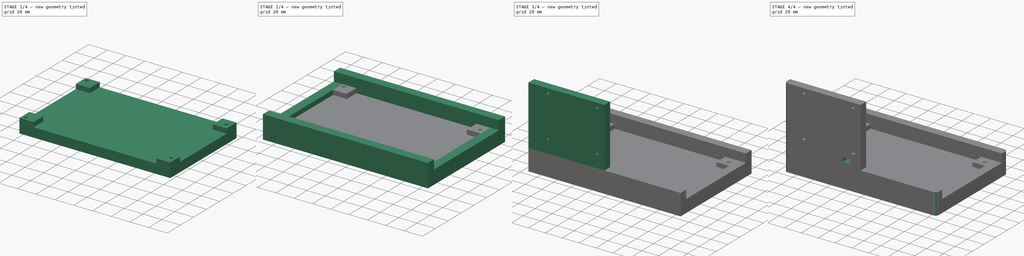
[diagram: build sequence overview — one tinted view per stage of 4, left to right]
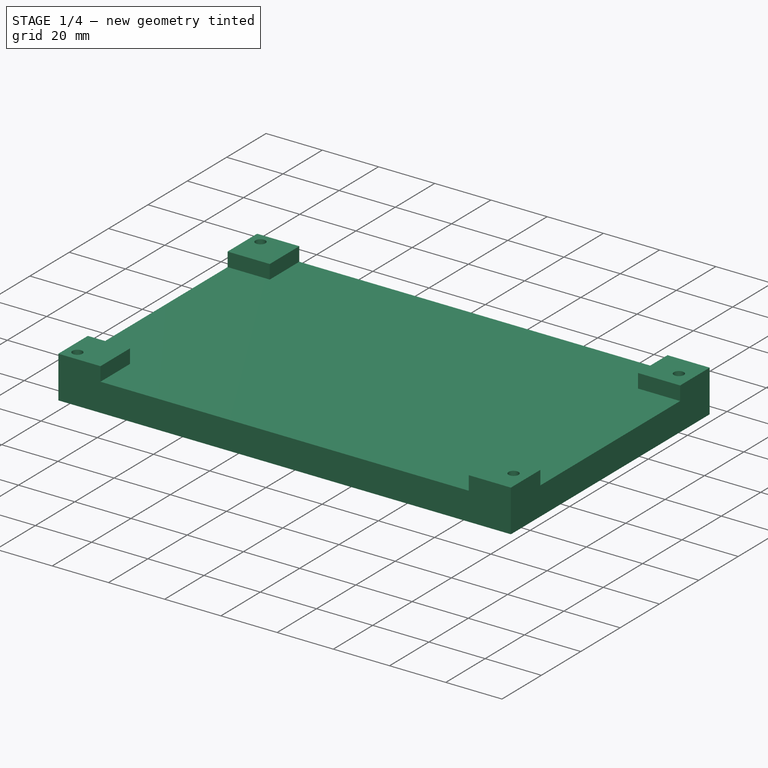
[diagram: stage 1 of 4 — iso view after this stage's code; geometry added in this stage tinted green]
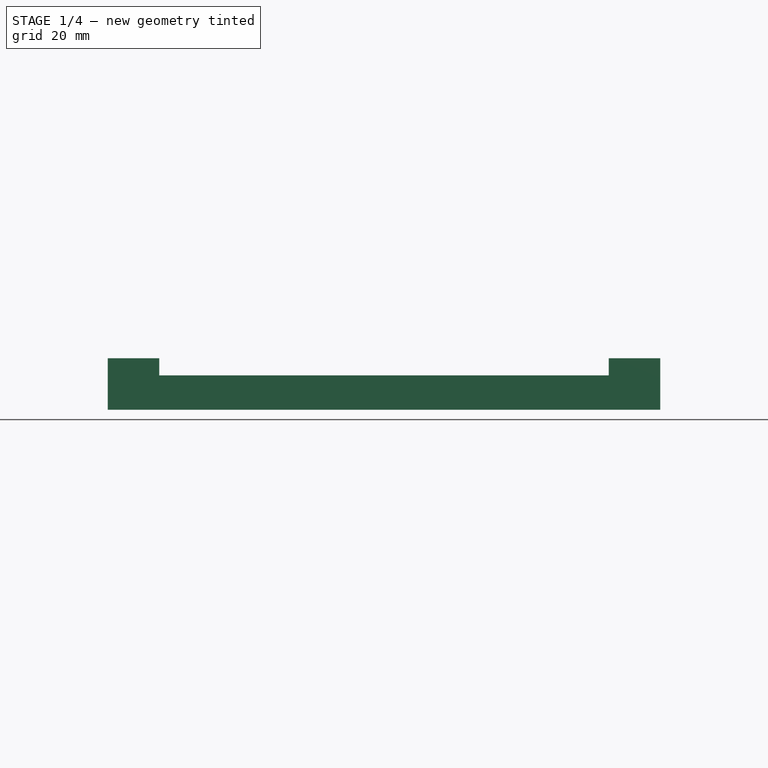
[diagram: stage 1 of 4 — front view after this stage's code; geometry added in this stage tinted green]
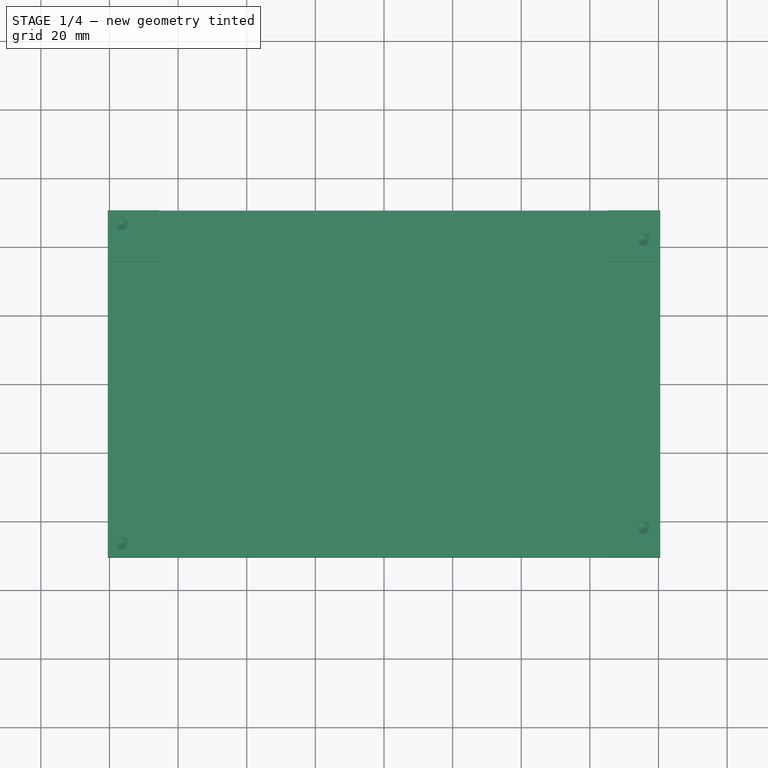
[diagram: stage 1 of 4 — top view after this stage's code; geometry added in this stage tinted green]
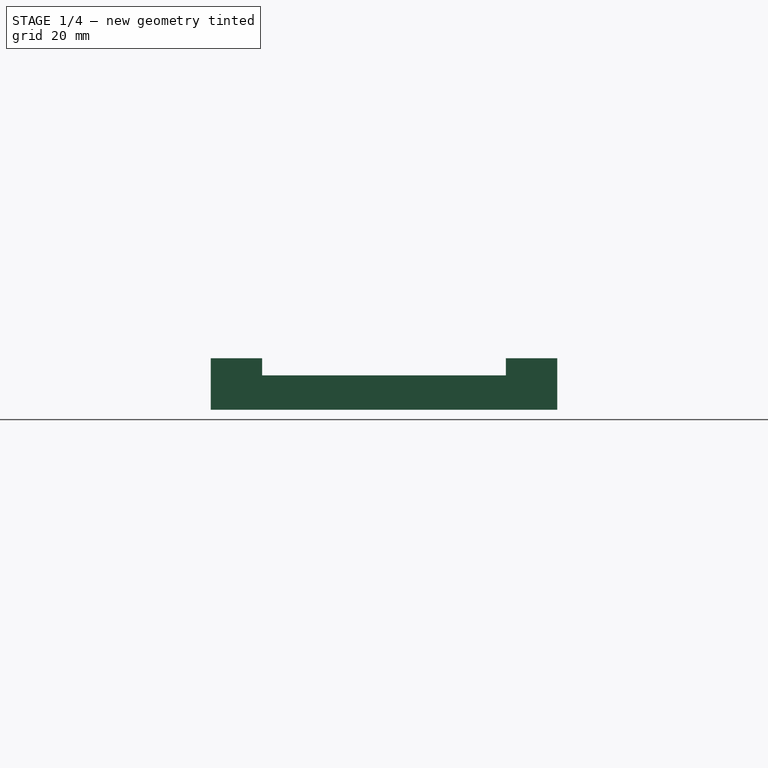
[diagram: stage 1 of 4 — right view after this stage's code; geometry added in this stage tinted green]
FCSTD DOCUMENT  (FreeCAD 0.21R33771 (Git))
Label: ez7-pi
License: All rights reserved
LicenseURL: https://en.wikipedia.org/wiki/All_rights_reserved
objects: Sketcher::SketchObject×11, PartDesign::Pad×4, PartDesign::Pocket×3, PartDesign::Body×2, PartDesign::Hole×2, PartDesign::Fillet×2
note: 35 computed .brp shape members not serialized (recipe doc carries the construction recipe); baked Part::Feature solids carry a one-line shape summary decoded from their .brp

FEATURE [PartDesign::Body] Body
  Origin = -> Origin
FEATURE [Sketcher::SketchObject] Sketch
  FullyConstrained = true
  MapMode = 5
  Support = -> [XY_Plane001]
  sketch-geometry (4):
    g0: LineSegment StartX=-80.5 StartY=50.5 StartZ=0 EndX=80.5 EndY=50.5 EndZ=0
    g1: LineSegment StartX=80.5 StartY=50.5 StartZ=0 EndX=80.5 EndY=-50.5 EndZ=0
    g2: LineSegment StartX=80.5 StartY=-50.5 StartZ=0 EndX=-80.5 EndY=-50.5 EndZ=0
    g3: LineSegment StartX=-80.5 StartY=-50.5 StartZ=0 EndX=-80.5 EndY=50.5 EndZ=0
  constraints (12):
    c: Coincident(g0,g1)
    c: Coincident(g1,g2)
    c: Coincident(g2,g3)
    c: Coincident(g3,g0)
    c: Horizontal(g0)
    c: Horizontal(g2)
    c: Vertical(g1)
    c: Vertical(g3)
    c: DistanceX(g0,g0) = 161
    c: DistanceY(g3,g3) = 101
    c: Distance(g-1,g3) = 80.5
    c: Distance(g-1,g0) = 50.5
FEATURE [PartDesign::Pad] Pad
  Direction = (0,0,1)
  Length = 10
  Length2 = 10
  Profile = -> Sketch
  ReferenceAxis = -> Sketch [N_Axis]
  Type = 0
FEATURE [Sketcher::SketchObject] Sketch001
  ExternalGeometry = -> [Pad]
  FullyConstrained = true
  MapMode = 5
  Placement = pos=(0,0,10) rot=(0,0,1;0rad)
  Support = -> [Pad]
  sketch-geometry (16):
    g0: LineSegment StartX=-80.5 StartY=50.5 StartZ=0 EndX=-65.5 EndY=50.5 EndZ=0
    g1: LineSegment StartX=-65.5 StartY=50.5 StartZ=0 EndX=-65.5 EndY=35.5 EndZ=0
    g2: LineSegment StartX=-65.5 StartY=35.5 StartZ=0 EndX=-80.5 EndY=35.5 EndZ=0
    g3: LineSegment StartX=-80.5 StartY=35.5 StartZ=0 EndX=-80.5 EndY=50.5 EndZ=0
    g4: LineSegment StartX=-80.5 StartY=-50.5 StartZ=0 EndX=-65.5 EndY=-50.5 EndZ=0
    g5: LineSegment StartX=-65.5 StartY=-50.5 StartZ=0 EndX=-65.5 EndY=-35.5 EndZ=0
    g6: LineSegment StartX=-65.5 StartY=-35.5 StartZ=0 EndX=-80.5 EndY=-35.5 EndZ=0
    g7: LineSegment StartX=-80.5 StartY=-35.5 StartZ=0 EndX=-80.5 EndY=-50.5 EndZ=0
    g8: LineSegment StartX=80.5 StartY=-50.5 StartZ=0 EndX=65.5 EndY=-50.5 EndZ=0
    g9: LineSegment StartX=65.5 StartY=-50.5 StartZ=0 EndX=65.5 EndY=-35.5 EndZ=0
    g10: LineSegment StartX=65.5 StartY=-35.5 StartZ=0 EndX=80.5 EndY=-35.5 EndZ=0
    g11: LineSegment StartX=80.5 StartY=-35.5 StartZ=0 EndX=80.5 EndY=-50.5 EndZ=0
    g12: LineSegment StartX=80.5 StartY=50.5 StartZ=0 EndX=65.5 EndY=50.5 EndZ=0
    g13: LineSegment StartX=65.5 StartY=50.5 StartZ=0 EndX=65.5 EndY=35.5 EndZ=0
    g14: LineSegment StartX=65.5 StartY=35.5 StartZ=0 EndX=80.5 EndY=35.5 EndZ=0
    g15: LineSegment StartX=80.5 StartY=35.5 StartZ=0 EndX=80.5 EndY=50.5 EndZ=0
  constraints (44):
    c: Coincident(g0,g1)
    c: Coincident(g1,g2)
    c: Coincident(g2,g3)
    c: Coincident(g3,g0)
    c: Horizontal(g0)
    c: Horizontal(g2)
    c: Vertical(g1)
    c: Vertical(g3)
    c: Coincident(g0,g-5)
    c: Coincident(g4,g5)
    c: Coincident(g5,g6)
    c: Coincident(g6,g7)
    c: Coincident(g7,g4)
    c: Horizontal(g4)
    c: Horizontal(g6)
    c: Vertical(g5)
    c: Vertical(g7)
    c: Coincident(g4,g-6)
    c: Coincident(g8,g9)
    c: Coincident(g9,g10)
    c: Coincident(g10,g11)
    c: Coincident(g11,g8)
    c: Horizontal(g8)
    c: Horizontal(g10)
    c: Vertical(g9)
    c: Vertical(g11)
    c: Coincident(g8,g-6)
    c: Coincident(g12,g13)
    c: Coincident(g13,g14)
    c: Coincident(g14,g15)
    c: Coincident(g15,g12)
    c: Horizontal(g12)
    c: Horizontal(g14)
    c: Vertical(g13)
    c: Vertical(g15)
    c: Coincident(g12,g-4)
    c: DistanceY(g3,g3) = 15
    c: DistanceX(g2,g2) = 15
    c: DistanceY(g5,g5) = 15
    c: DistanceX(g6,g6) = 15
    c: DistanceX(g10,g10) = 15
    c: DistanceY(g9,g9) = 15
    c: DistanceY(g13,g13) = 15
    c: DistanceX(g14,g14) = 15
FEATURE [PartDesign::Pad] Pad001
  BaseFeature = -> Pad
  Direction = (0,0,1)
  Length = 5
  Length2 = 10
  Profile = -> Sketch001
  ReferenceAxis = -> Sketch001 [N_Axis]
  Type = 0
FEATURE [Sketcher::SketchObject] Sketch002
  FullyConstrained = true
  MapMode = 5
  Placement = pos=(0,0,15) rot=(0,0,1;0rad)
  Support = -> [Pad001]
FEATURE [Sketcher::SketchObject] Sketch003
  ExternalGeometry = -> [Pad001]
  FullyConstrained = true
  MapMode = 5
  Placement = pos=(0,0,15) rot=(0,0,1;0rad)
  Support = -> [Pad001]
  sketch-geometry (4):
    g0: Circle CenterX=-76.5 CenterY=-46.5 CenterZ=0 NormalX=0 NormalY=0 NormalZ=1 AngleXU=0 Radius=1.775
    g1: Circle CenterX=-76.5 CenterY=46.5 CenterZ=0 NormalX=0 NormalY=0 NormalZ=1 AngleXU=0 Radius=1.775
    g2: Circle CenterX=75.5 CenterY=-42 CenterZ=0 NormalX=0 NormalY=0 NormalZ=1 AngleXU=0 Radius=1.5
    g3: Circle CenterX=75.5 CenterY=42 CenterZ=0 NormalX=0 NormalY=0 NormalZ=1 AngleXU=0 Radius=1.5
  constraints (12):
    c: Distance(g0,g-5) = 4
    c: Distance(g0,g-4) = 4
    c: Diameter(g0) = 3.55
    c: Diameter(g1) = 3.55
    c: Distance(g1,g-8) = 4
    c: Distance(g1,g-10) = 4
    c: Distance(g2,g-16) = 8.5
    c: Distance(g3,g-12) = 8.5
    c: Diameter(g3) = 3
    c: Diameter(g2) = 3
    c: Distance(g2,g-18) = 5
    c: Distance(g3,g-14) = 5
FEATURE [PartDesign::Hole] Hole
  BaseFeature = -> Pad001
  CustomThreadClearance = 0
  Depth = 5
  DepthType = 0
  Diameter = 3.55
  DrillForDepth = false
  DrillPoint = 1
  DrillPointAngle = 118
  HoleCutCountersinkAngle = 90
  HoleCutCustomValues = false
  HoleCutDepth = 0
  HoleCutDiameter = 6.1
  HoleCutType = 0
  ModelThread = false
  Profile = -> Sketch003
  Tapered = false
  TaperedAngle = 90
  ThreadClass = 0
  ThreadDepth = 5
  ThreadDepthType = 0
  ThreadDirection = 0
  ThreadFit = 0
  ThreadSize = 0
  ThreadType = 0
  Threaded = false
  UseCustomThreadClearance = false
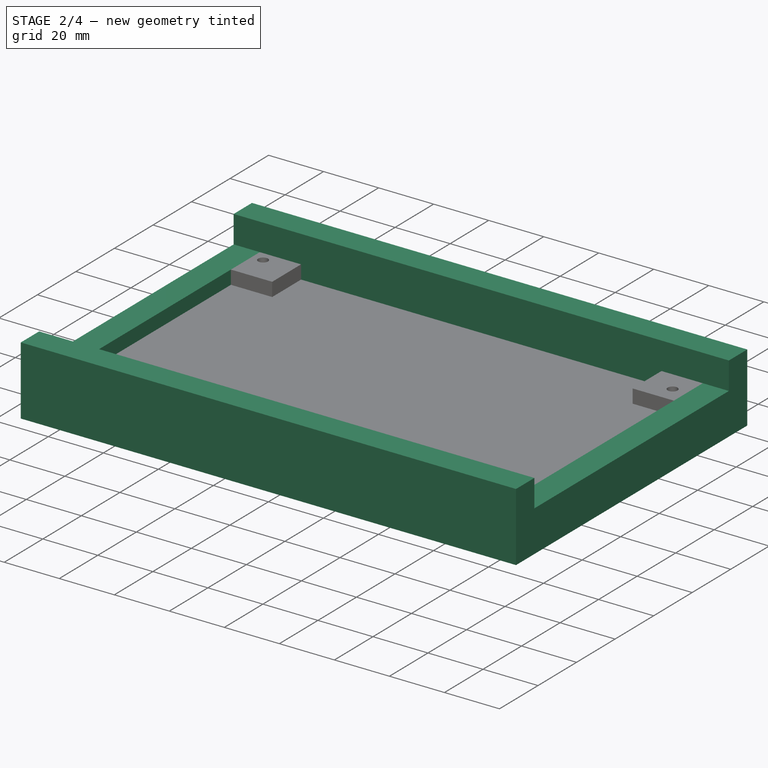
[diagram: stage 2 of 4 — iso view after this stage's code; geometry added in this stage tinted green]
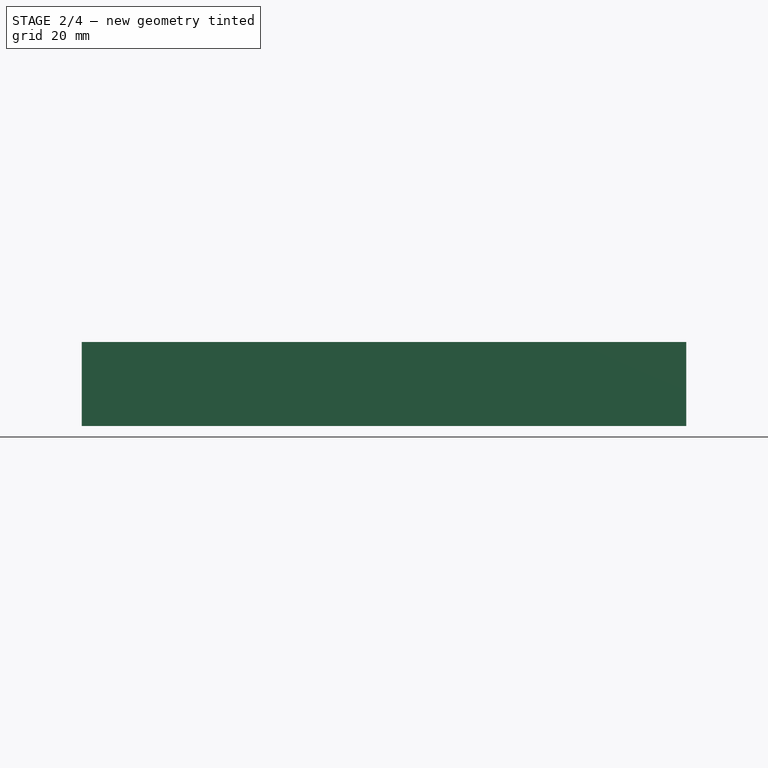
[diagram: stage 2 of 4 — front view after this stage's code; geometry added in this stage tinted green]
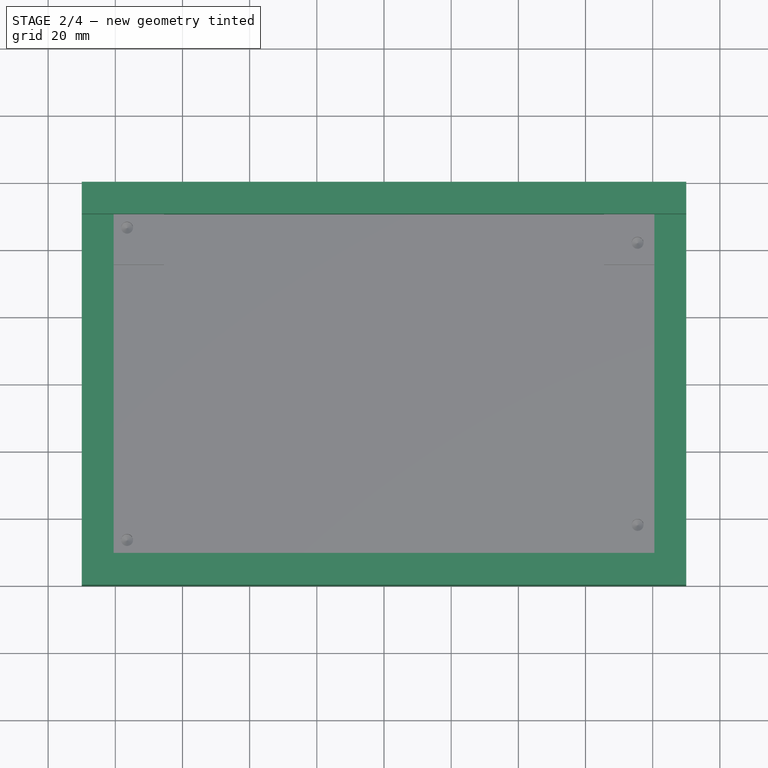
[diagram: stage 2 of 4 — top view after this stage's code; geometry added in this stage tinted green]
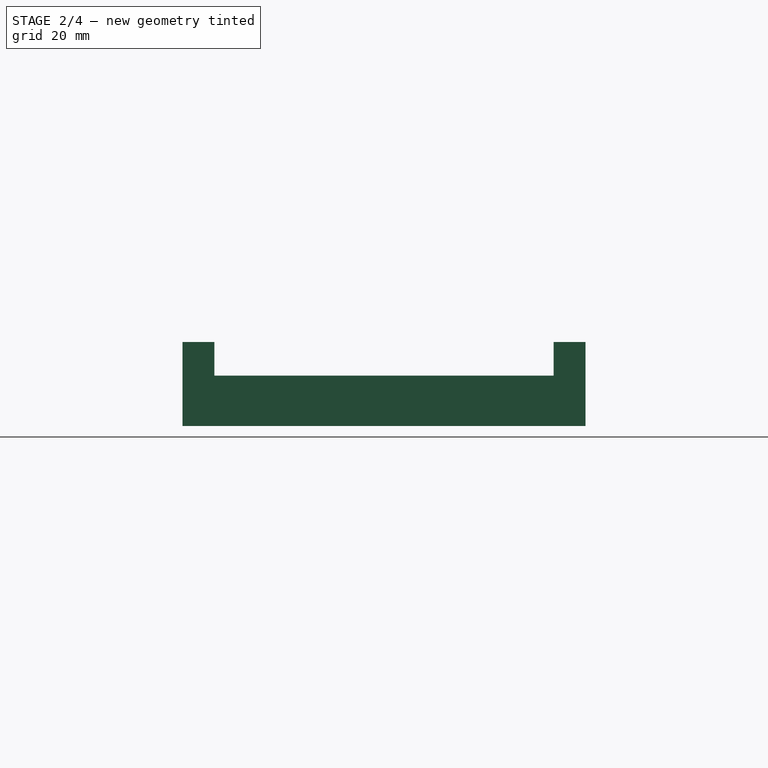
[diagram: stage 2 of 4 — right view after this stage's code; geometry added in this stage tinted green]
FEATURE [Sketcher::SketchObject] Sketch004
  FullyConstrained = true
  MapMode = 5
  Placement = pos=(0,0,10) rot=(0,0,1;0rad)
  Support = -> [Hole]
FEATURE [Sketcher::SketchObject] Sketch005
  ExternalGeometry = -> [Hole]
  FullyConstrained = true
  MapMode = 5
  Support = -> [XY_Plane001]
  sketch-geometry (8):
    g0: LineSegment StartX=90 StartY=60 StartZ=0 EndX=-90 EndY=60 EndZ=0
    g1: LineSegment StartX=-90 StartY=60 StartZ=0 EndX=-90 EndY=-60 EndZ=0
    g2: LineSegment StartX=-90 StartY=-60 StartZ=0 EndX=90 EndY=-60 EndZ=0
    g3: LineSegment StartX=90 StartY=-60 StartZ=0 EndX=90 EndY=60 EndZ=0
    g4: LineSegment StartX=-80.5 StartY=-50.5 StartZ=0 EndX=80.5 EndY=-50.5 EndZ=0
    g5: LineSegment StartX=80.5 StartY=-50.5 StartZ=0 EndX=80.5 EndY=50.5 EndZ=0
    g6: LineSegment StartX=80.5 StartY=50.5 StartZ=0 EndX=-80.5 EndY=50.5 EndZ=0
    g7: LineSegment StartX=-80.5 StartY=50.5 StartZ=0 EndX=-80.5 EndY=-50.5 EndZ=0
  constraints (22):
    c: Coincident(g0,g1)
    c: Coincident(g1,g2)
    c: Coincident(g2,g3)
    c: Coincident(g3,g0)
    c: Horizontal(g0)
    c: Horizontal(g2)
    c: Vertical(g1)
    c: Vertical(g3)
    c: Distance(g0) = 180
    c: Distance(g3) = 120
    c: Distance(g-1,g0) = 60
    c: Distance(g-1,g1) = 90
    c: Coincident(g4,g5)
    c: Coincident(g5,g6)
    c: Coincident(g6,g7)
    c: Coincident(g7,g4)
    c: Horizontal(g4)
    c: Horizontal(g6)
    c: Vertical(g5)
    c: Vertical(g7)
    c: Coincident(g4,g-4)
    c: Coincident(g5,g-6)
FEATURE [PartDesign::Pad] Pad002
  BaseFeature = -> Hole
  Direction = (0,0,1)
  Length = 25
  Length2 = 10
  Profile = -> Sketch005
  ReferenceAxis = -> Sketch005 [N_Axis]
  Type = 0
FEATURE [Sketcher::SketchObject] Sketch006
  ExternalGeometry = -> [Pad002]
  FullyConstrained = true
  MapMode = 5
  Placement = pos=(0,0,25) rot=(0,0,1;0rad)
  Support = -> [Pad002]
  sketch-geometry (4):
    g0: LineSegment StartX=80.5 StartY=50.5 StartZ=0 EndX=90 EndY=50.5 EndZ=0
    g1: LineSegment StartX=90 StartY=50.5 StartZ=0 EndX=90 EndY=-50.5 EndZ=0
    g2: LineSegment StartX=90 StartY=-50.5 StartZ=0 EndX=80.5 EndY=-50.5 EndZ=0
    g3: LineSegment StartX=80.5 StartY=-50.5 StartZ=0 EndX=80.5 EndY=50.5 EndZ=0
  constraints (11):
    c: Coincident(g0,g1)
    c: Coincident(g1,g2)
    c: Coincident(g2,g3)
    c: Coincident(g3,g0)
    c: Horizontal(g0)
    c: Horizontal(g2)
    c: Vertical(g1)
    c: Vertical(g3)
    c: Coincident(g0,g-3)
    c: PointOnObject(g1,g-4)
    c: Distance(g3) = 101
FEATURE [PartDesign::Pocket] Pocket
  BaseFeature = -> Pad002
  Direction = (0,0,-1)
  Length = 10
  Length2 = 5
  Profile = -> Sketch006
  ReferenceAxis = -> Sketch006 [N_Axis]
  Type = 0
FEATURE [Sketcher::SketchObject] Sketch007
  ExternalGeometry = -> [Pocket]
  FullyConstrained = true
  MapMode = 5
  Placement = pos=(0,0,25) rot=(0,0,1;0rad)
  Support = -> [Pocket]
  sketch-geometry (4):
    g0: LineSegment StartX=-80.5 StartY=50.5 StartZ=0 EndX=-90 EndY=50.5 EndZ=0
    g1: LineSegment StartX=-90 StartY=50.5 StartZ=0 EndX=-90 EndY=-50.5 EndZ=0
    g2: LineSegment StartX=-90 StartY=-50.5 StartZ=0 EndX=-80.5 EndY=-50.5 EndZ=0
    g3: LineSegment StartX=-80.5 StartY=-50.5 StartZ=0 EndX=-80.5 EndY=50.5 EndZ=0
  constraints (11):
    c: Coincident(g0,g1)
    c: Coincident(g1,g2)
    c: Coincident(g2,g3)
    c: Coincident(g3,g0)
    c: Horizontal(g0)
    c: Horizontal(g2)
    c: Vertical(g1)
    c: Vertical(g3)
    c: Coincident(g0,g-8)
    c: PointOnObject(g1,g-4)
    c: DistanceY(g3,g3) = 101
FEATURE [PartDesign::Pocket] Pocket001
  BaseFeature = -> Pocket
  Direction = (0,0,-1)
  Length = 10
  Length2 = 5
  Profile = -> Sketch007
  ReferenceAxis = -> Sketch007 [N_Axis]
  Type = 0
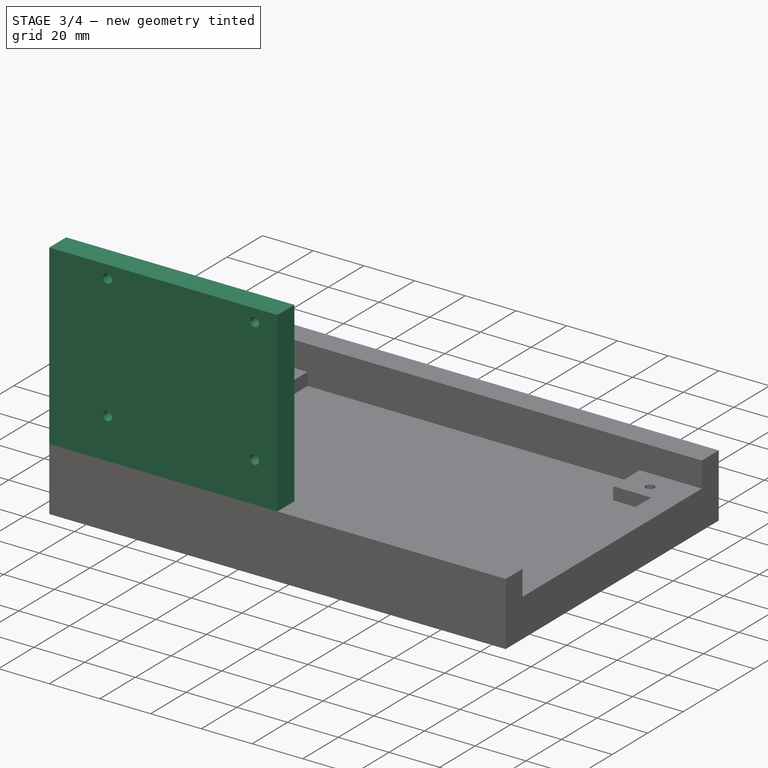
[diagram: stage 3 of 4 — iso view after this stage's code; geometry added in this stage tinted green]
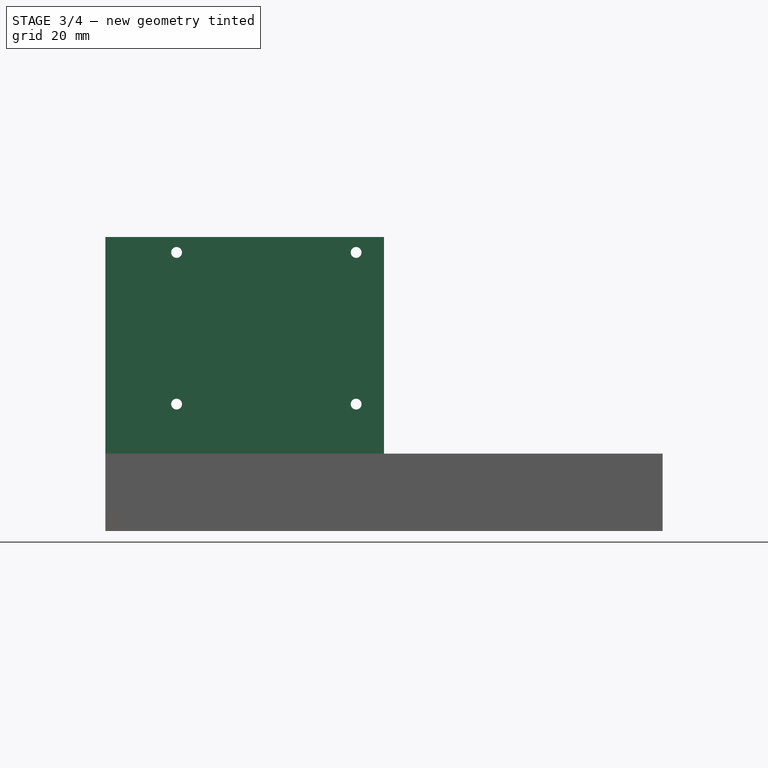
[diagram: stage 3 of 4 — front view after this stage's code; geometry added in this stage tinted green]
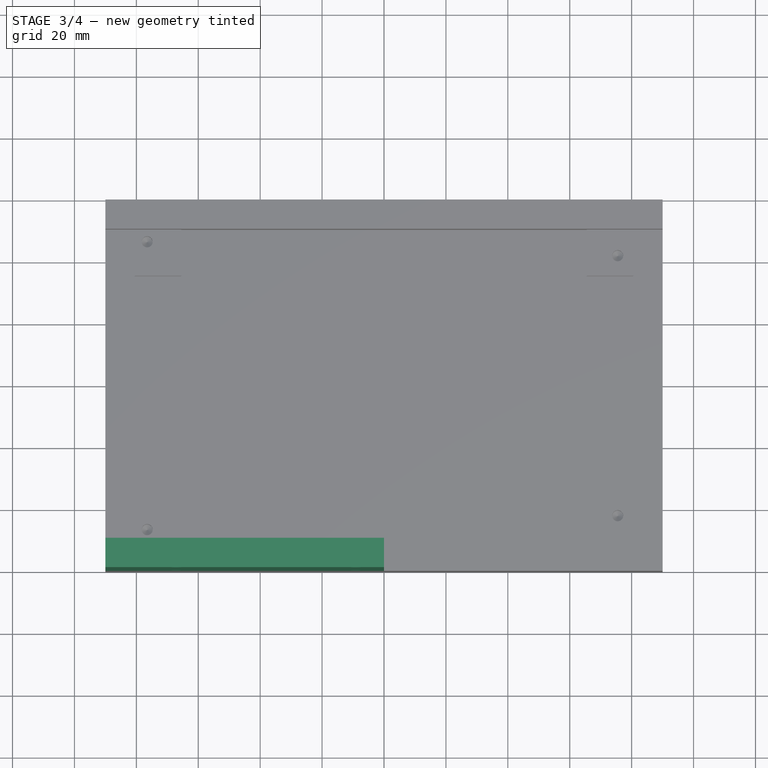
[diagram: stage 3 of 4 — top view after this stage's code; geometry added in this stage tinted green]
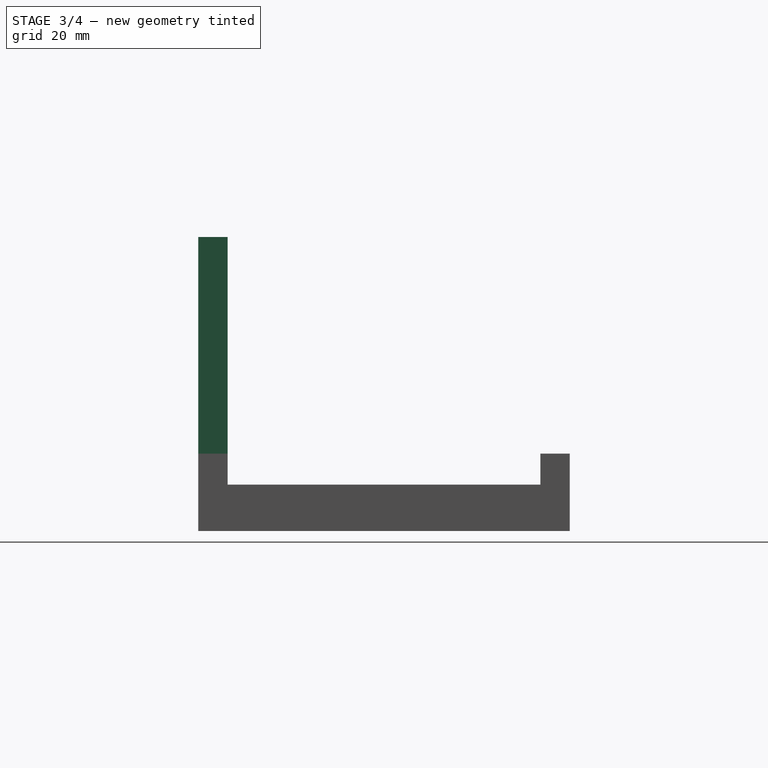
[diagram: stage 3 of 4 — right view after this stage's code; geometry added in this stage tinted green]
FEATURE [Sketcher::SketchObject] Sketch008
  ExternalGeometry = -> [Pocket001]
  FullyConstrained = true
  MapMode = 5
  Placement = pos=(0,0,25) rot=(0,0,1;0rad)
  Support = -> [Pocket001]
  sketch-geometry (4):
    g0: LineSegment StartX=-90 StartY=-50.5 StartZ=0 EndX=0 EndY=-50.5 EndZ=0
    g1: LineSegment StartX=0 StartY=-50.5 StartZ=0 EndX=0 EndY=-60 EndZ=0
    g2: LineSegment StartX=0 StartY=-60 StartZ=0 EndX=-90 EndY=-60 EndZ=0
    g3: LineSegment StartX=-90 StartY=-60 StartZ=0 EndX=-90 EndY=-50.5 EndZ=0
  constraints (11):
    c: Coincident(g0,g1)
    c: Coincident(g1,g2)
    c: Coincident(g2,g3)
    c: Coincident(g3,g0)
    c: Horizontal(g0)
    c: Horizontal(g2)
    c: Vertical(g1)
    c: Vertical(g3)
    c: Coincident(g0,g-4)
    c: PointOnObject(g1,g-5)
    c: DistanceX(g2,g2) = 90
FEATURE [PartDesign::Pad] Pad003
  BaseFeature = -> Pocket001
  Direction = (0,0,1)
  Length = 70
  Length2 = 10
  Profile = -> Sketch008
  ReferenceAxis = -> Sketch008 [N_Axis]
  Type = 0
FEATURE [Sketcher::SketchObject] Sketch009
  ExternalGeometry = -> [Pad003]
  FullyConstrained = true
  MapMode = 5
  Placement = pos=(0,-50.5,0) rot=(0,0.707107,0.707107;3.14159rad)
  Support = -> [Pad003]
  sketch-geometry (4):
    g0: Circle CenterX=67 CenterY=90 CenterZ=0 NormalX=0 NormalY=0 NormalZ=1 AngleXU=0 Radius=2.75
    g1: Circle CenterX=9 CenterY=90 CenterZ=0 NormalX=0 NormalY=0 NormalZ=1 AngleXU=0 Radius=2.75
    g2: Circle CenterX=9 CenterY=41 CenterZ=0 NormalX=0 NormalY=0 NormalZ=1 AngleXU=0 Radius=2.75
    g3: Circle CenterX=67 CenterY=41 CenterZ=0 NormalX=0 NormalY=0 NormalZ=1 AngleXU=0 Radius=2.75
  constraints (12):
    c: Radius(g1) = 2.75
    c: Radius(g2) = 2.75
    c: Radius(g3) = 2.75
    c: Radius(g0) = 2.75
    c: Distance(g3,g0) = 49
    c: DistanceY(g2,g1) = 49
    c: DistanceX(g2,g3) = 58
    c: DistanceX(g1,g0) = 58
    c: Distance(g1,g-3) = 5
    c: Distance(g0,g-3) = 5
    c: Distance(g1,g-4) = 9
    c: Distance(g2,g-4) = 9
FEATURE [PartDesign::Hole] Hole001
  BaseFeature = -> Pad003
  CustomThreadClearance = 0
  Depth = 25
  DepthType = 0
  Diameter = 3.5
  DrillForDepth = false
  DrillPoint = 1
  DrillPointAngle = 118
  HoleCutCountersinkAngle = 90
  HoleCutCustomValues = false
  HoleCutDepth = 0
  HoleCutDiameter = 6.1
  HoleCutType = 0
  ModelThread = false
  Profile = -> Sketch009
  Tapered = false
  TaperedAngle = 90
  ThreadClass = 0
  ThreadDepth = 25
  ThreadDepthType = 0
  ThreadDirection = 0
  ThreadFit = 0
  ThreadSize = 0
  ThreadType = 0
  Threaded = false
  UseCustomThreadClearance = false
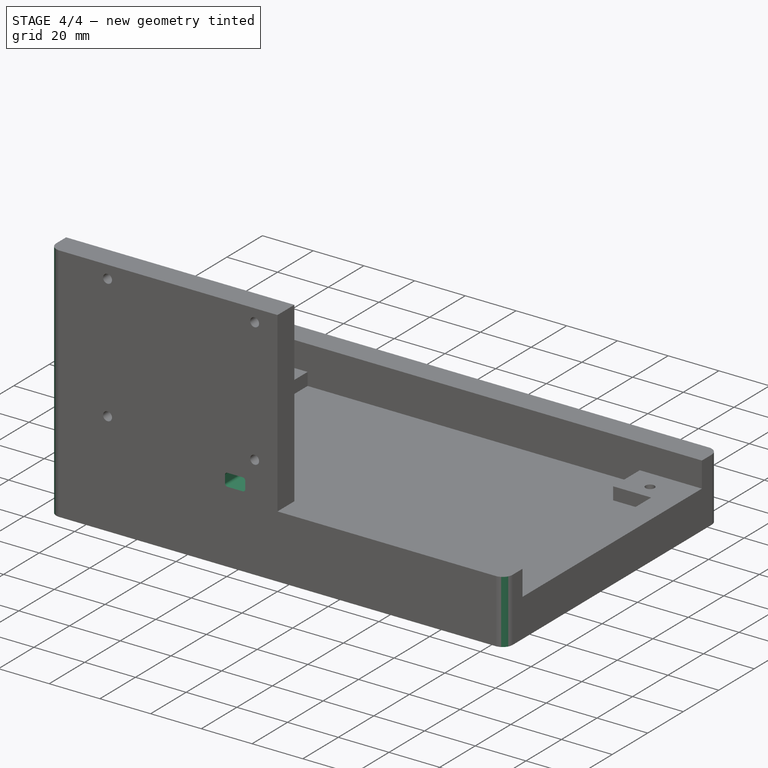
[diagram: stage 4 of 4 — iso view after this stage's code; geometry added in this stage tinted green]
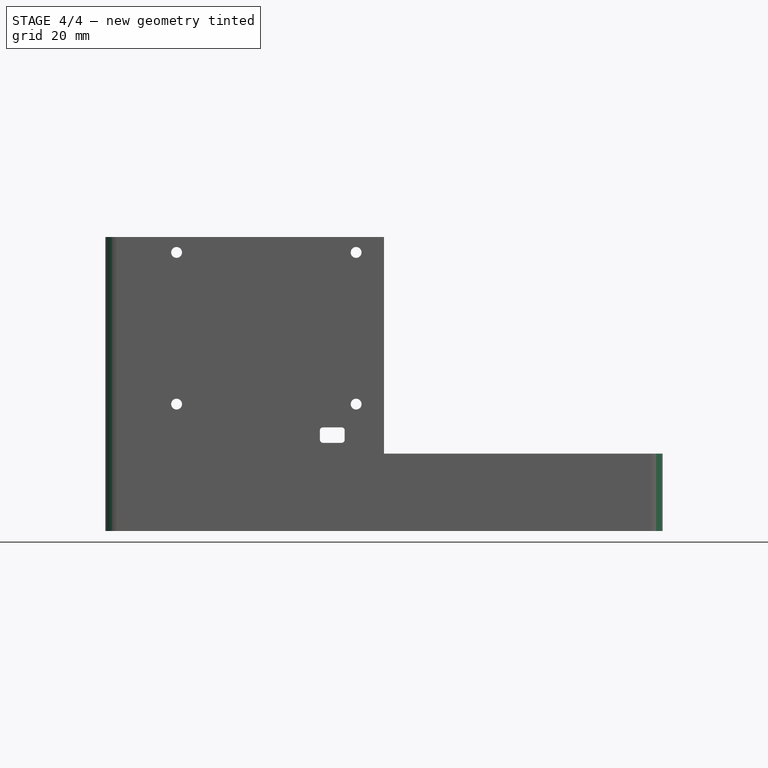
[diagram: stage 4 of 4 — front view after this stage's code; geometry added in this stage tinted green]
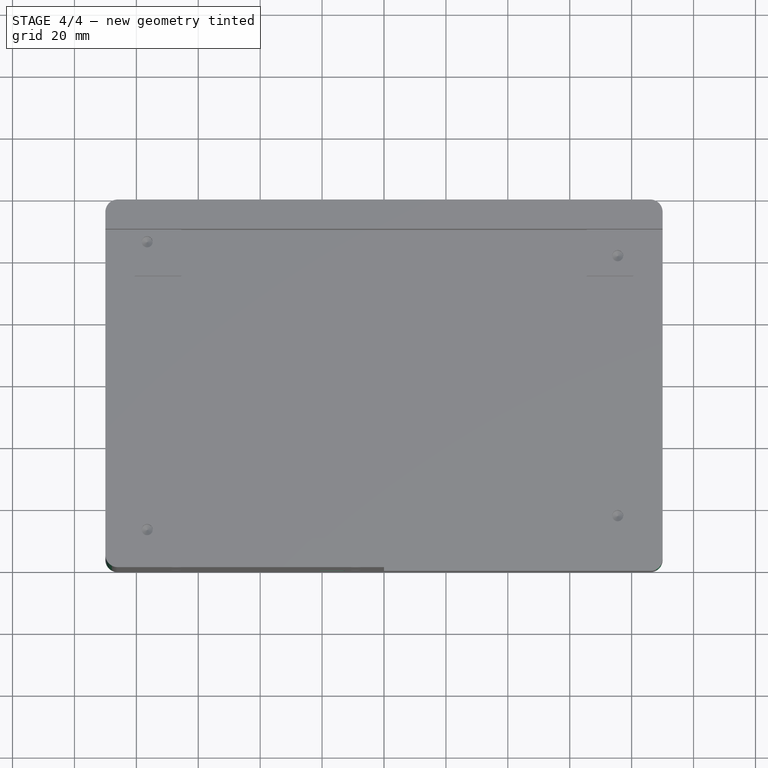
[diagram: stage 4 of 4 — top view after this stage's code; geometry added in this stage tinted green]
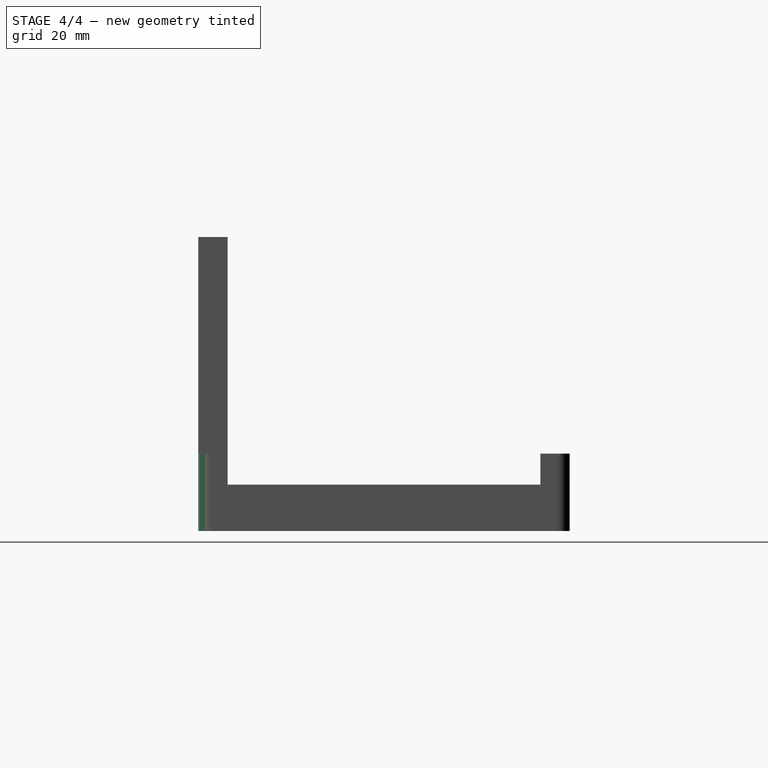
[diagram: stage 4 of 4 — right view after this stage's code; geometry added in this stage tinted green]
FEATURE [Sketcher::SketchObject] Sketch010
  ExternalGeometry = -> [Hole001]
  FullyConstrained = true
  MapMode = 5
  Placement = pos=(0,-50.5,0) rot=(0,0.707107,0.707107;3.14159rad)
  Support = -> [Hole001]
  sketch-geometry (5):
    g0: LineSegment StartX=20.7 StartY=33.5 StartZ=0 EndX=20.7 EndY=28.5 EndZ=0
    g1: LineSegment StartX=20.7 StartY=28.5 StartZ=0 EndX=12.7 EndY=28.5 EndZ=0
    g2: LineSegment StartX=12.7 StartY=28.5 StartZ=0 EndX=12.7 EndY=33.5 EndZ=0
    g3: LineSegment StartX=12.7 StartY=33.5 StartZ=0 EndX=20.7 EndY=33.5 EndZ=0
    g4: GeomPoint X=16.7 Y=31 Z=0
  constraints (13):
    c: Coincident(g0,g1)
    c: Coincident(g1,g2)
    c: Coincident(g2,g3)
    c: Coincident(g3,g0)
    c: Horizontal(g1)
    c: Horizontal(g3)
    c: Vertical(g0)
    c: Vertical(g2)
    c: Symmetric(g1,g0,g4)
    c: DistanceX(g-3,g4) = 7.7
    c: DistanceY(g4,g-3) = 10
    c: Distance(g2) = 5
    c: Distance(g3) = 8
FEATURE [PartDesign::Pocket] Pocket002
  BaseFeature = -> Hole001
  Direction = (0,-1,2e-16)
  Length = 10
  Length2 = 5
  Profile = -> Sketch010
  ReferenceAxis = -> Sketch010 [N_Axis]
  Type = 0
FEATURE [PartDesign::Fillet] Fillet
  Base = -> Pocket002 [Edge97,Edge96,Edge95,Edge94]
  BaseFeature = -> Pocket002
  Radius = 1
  SupportTransform = false
  UseAllEdges = false
FEATURE [PartDesign::Fillet] Fillet001
  Base = -> Fillet [Edge37,Edge64,Edge62,Edge36,Edge12]
  BaseFeature = -> Fillet
  Radius = 4
  SupportTransform = false
  UseAllEdges = false
FEATURE [PartDesign::Body] Body001
  Group = -> [Sketch,Pad,Sketch001,Pad001,Sketch002,Sketch003,Hole,Sketch004,Sketch005,Pad002,Sketch006,Pocket,Sketch007,Pocket001,Sketch008,Pad003,Sketch009,Hole001,Sketch010,Pocket002,Fillet,Fillet001]
  Origin = -> Origin001
  Tip = -> Fillet001
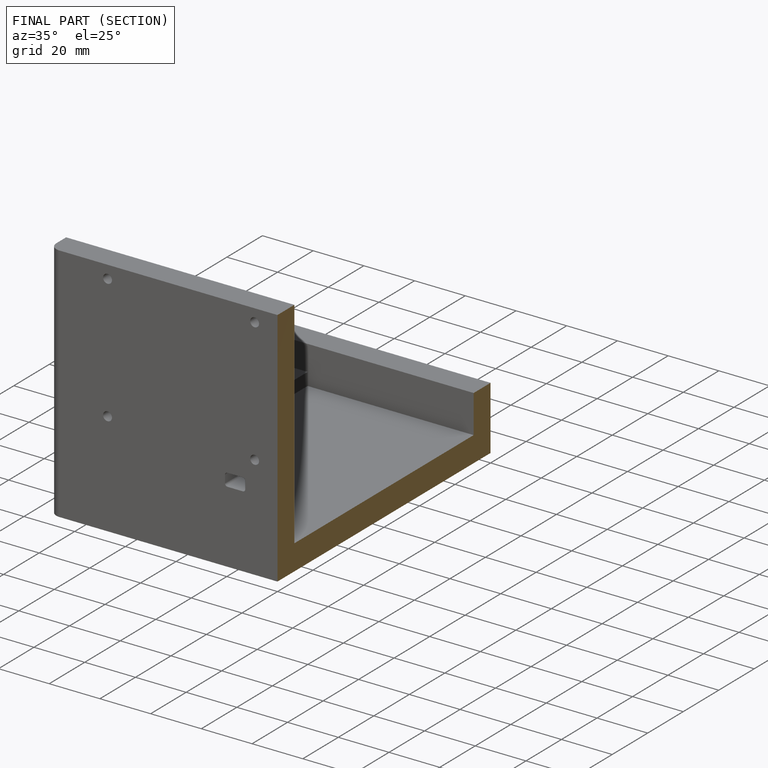
[diagram: finished part — half-section view (interior)]
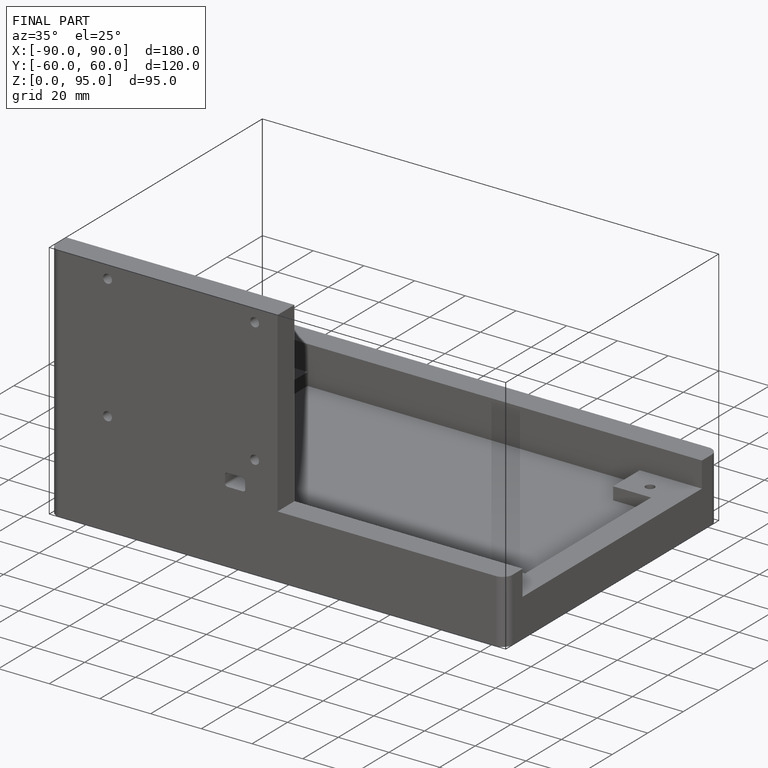
[diagram: finished part — iso view with bounding-box wireframe]
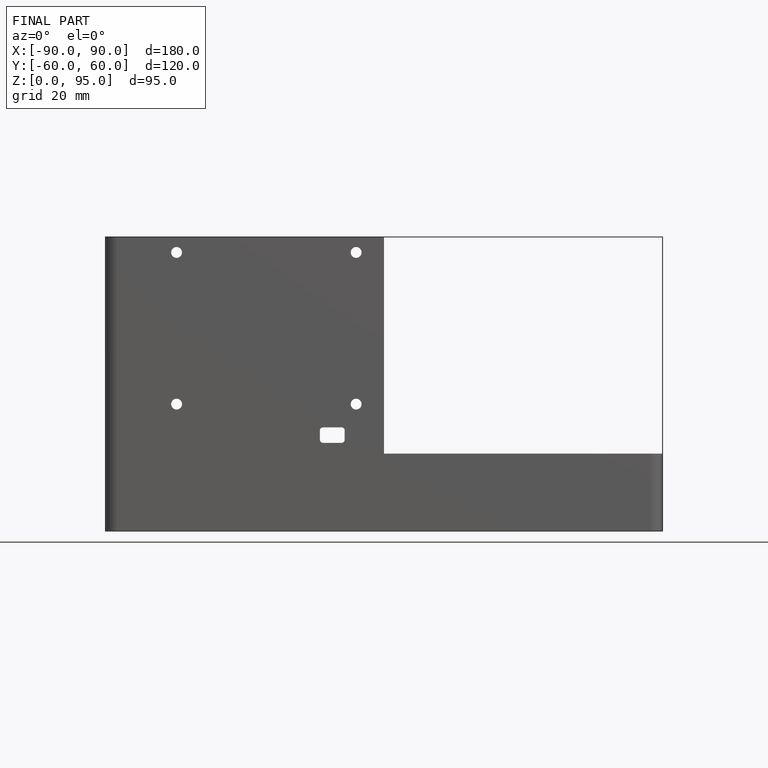
[diagram: finished part — front view with bounding-box wireframe]
